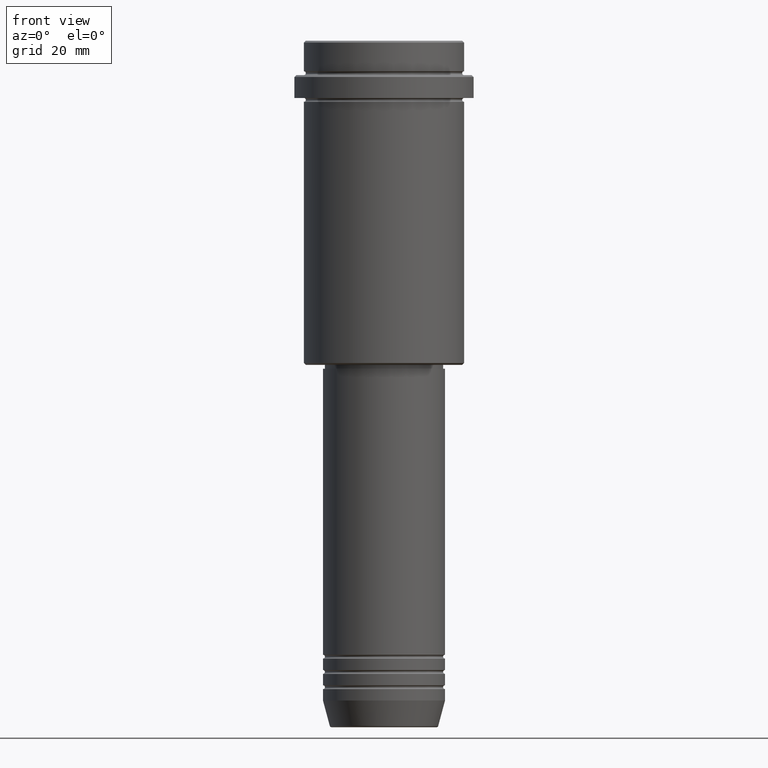
[diagram: clean part render]
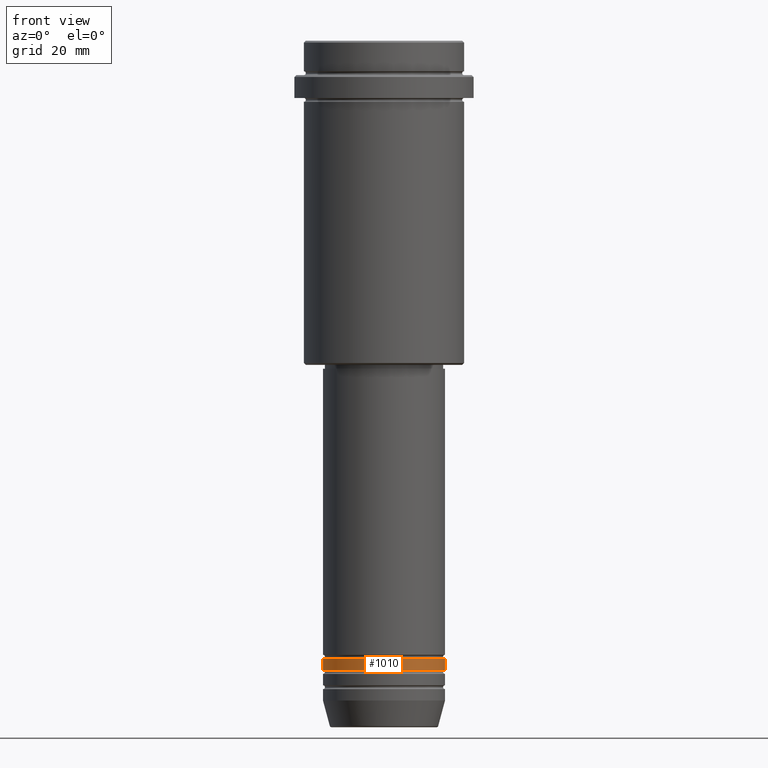
[diagram: same view with one face highlighted and labeled with its STEP entity id]
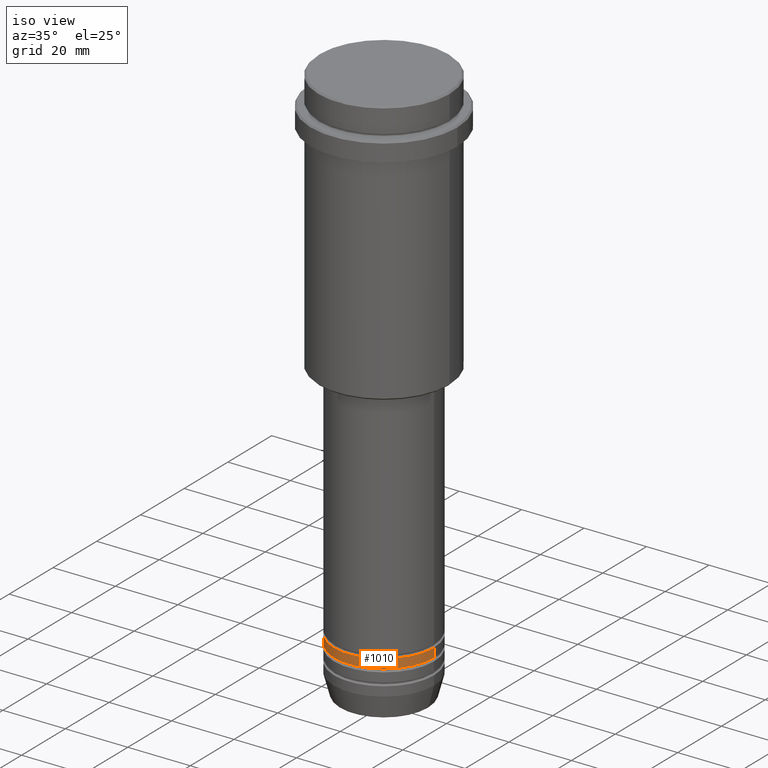
[diagram: same view with one face highlighted and labeled with its STEP entity id]
A machine part, front view. The second image highlights one B-rep face of the part: STEP entity #1010.
A second angle (iso view) of the same face is appended — the face is thin or edge-on in the first view.
In plain terms, the highlighted cylindrical surface (partial cylindrical patch) has radius 16 mm, axis along (-0, -0, 1).
Its self-contained STEP definition (entity closure, byte-faithful):
#22 = CIRCLE ( 'NONE', #632, 16.00000000000000000 ) ;
#43 = VECTOR ( 'NONE', #464, 1000.000000000000000 ) ;
#58 = ORIENTED_EDGE ( 'NONE', *, *, #755, .T. ) ;
#146 = ORIENTED_EDGE ( 'NONE', *, *, #922, .F. ) ;
#148 = DIRECTION ( 'NONE',  ( 1.000000000000000000, 0.000000000000000000, 0.000000000000000000 ) ) ;
#174 = CARTESIAN_POINT ( 'NONE',  ( 0.000000000000000000, 0.000000000000000000, -161.9999999999998579 ) ) ;
#271 = CARTESIAN_POINT ( 'NONE',  ( -16.00000000000000000, 1.959434878635765131E-15, -161.9999999999998579 ) ) ;
#276 = CARTESIAN_POINT ( 'NONE',  ( -16.00000000000000000, 1.959434878635765131E-15, 0.000000000000000000 ) ) ;
#282 = CYLINDRICAL_SURFACE ( 'NONE', #397, 16.00000000000000000 ) ;
#300 = EDGE_CURVE ( 'NONE', #977, #1356, #1251, .T. ) ;
#333 = CIRCLE ( 'NONE', #463, 16.00000000000000000 ) ;
#354 = CARTESIAN_POINT ( 'NONE',  ( 16.00000000000000000, 0.000000000000000000, 0.000000000000000000 ) ) ;
#358 = VECTOR ( 'NONE', #1136, 1000.000000000000000 ) ;
#389 = FACE_OUTER_BOUND ( 'NONE', #567, .T. ) ;
#397 = AXIS2_PLACEMENT_3D ( 'NONE', #1147, #1045, #1366 ) ;
#463 = AXIS2_PLACEMENT_3D ( 'NONE', #666, #1235, #148 ) ;
#464 = DIRECTION ( 'NONE',  ( -0.000000000000000000, -0.000000000000000000, 1.000000000000000000 ) ) ;
#487 = CARTESIAN_POINT ( 'NONE',  ( 16.00000000000000000, 0.000000000000000000, -164.9999999999998579 ) ) ;
#567 = EDGE_LOOP ( 'NONE', ( #1310, #58, #784, #146 ) ) ;
#605 = LINE ( 'NONE', #276, #358 ) ;
#632 = AXIS2_PLACEMENT_3D ( 'NONE', #174, #1036, #805 ) ;
#666 = CARTESIAN_POINT ( 'NONE',  ( 0.000000000000000000, 0.000000000000000000, -164.9999999999998579 ) ) ;
#755 = EDGE_CURVE ( 'NONE', #1118, #977, #333, .T. ) ;
#784 = ORIENTED_EDGE ( 'NONE', *, *, #300, .T. ) ;
#805 = DIRECTION ( 'NONE',  ( 1.000000000000000000, 0.000000000000000000, 0.000000000000000000 ) ) ;
#818 = CARTESIAN_POINT ( 'NONE',  ( 16.00000000000000000, 0.000000000000000000, -161.9999999999998579 ) ) ;
#922 = EDGE_CURVE ( 'NONE', #1322, #1356, #22, .T. ) ;
#977 = VERTEX_POINT ( 'NONE', #487 ) ;
#1010 = ADVANCED_FACE ( 'NONE', ( #389 ), #282, .T. ) ;
#1036 = DIRECTION ( 'NONE',  ( -0.000000000000000000, -0.000000000000000000, 1.000000000000000000 ) ) ;
#1045 = DIRECTION ( 'NONE',  ( -0.000000000000000000, -0.000000000000000000, 1.000000000000000000 ) ) ;
#1067 = CARTESIAN_POINT ( 'NONE',  ( -16.00000000000000000, 1.959434878635765131E-15, -164.9999999999998579 ) ) ;
#1118 = VERTEX_POINT ( 'NONE', #1067 ) ;
#1136 = DIRECTION ( 'NONE',  ( -0.000000000000000000, -0.000000000000000000, 1.000000000000000000 ) ) ;
#1147 = CARTESIAN_POINT ( 'NONE',  ( 0.000000000000000000, 0.000000000000000000, 0.000000000000000000 ) ) ;
#1235 = DIRECTION ( 'NONE',  ( -0.000000000000000000, -0.000000000000000000, 1.000000000000000000 ) ) ;
#1251 = LINE ( 'NONE', #354, #43 ) ;
#1310 = ORIENTED_EDGE ( 'NONE', *, *, #1340, .F. ) ;
#1322 = VERTEX_POINT ( 'NONE', #271 ) ;
#1340 = EDGE_CURVE ( 'NONE', #1118, #1322, #605, .T. ) ;
#1356 = VERTEX_POINT ( 'NONE', #818 ) ;
#1366 = DIRECTION ( 'NONE',  ( 1.000000000000000000, 0.000000000000000000, 0.000000000000000000 ) ) ;